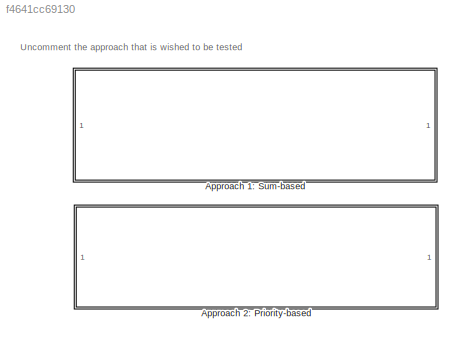
MODEL slx_f4641cc69130
KIND model
CONFIG AbsTol = auto
CONFIG EnableMultiTasking = off
CONFIG FixedStep = auto
CONFIG MaxStep = auto
CONFIG MinStep = auto
CONFIG RelTol = 1e-3
CONFIG SampleTimeConstraint = Unconstrained
CONFIG SolverName = VariableStepAuto
CONFIG StartTime = 0.0
CONFIG StopTime = 30
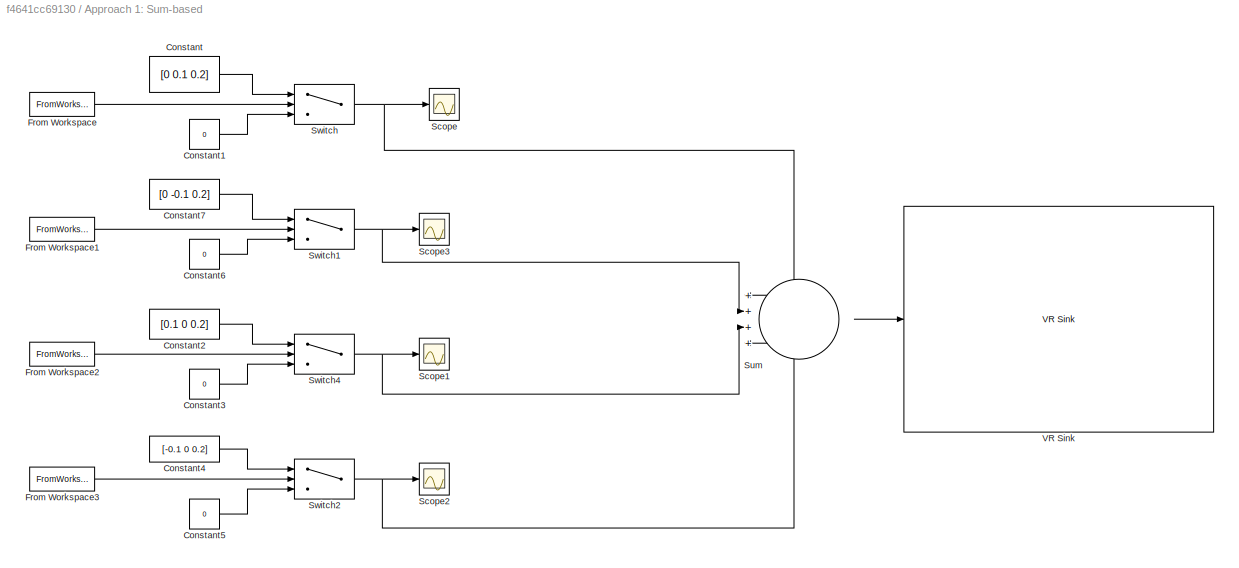
BLOCK [SubSystem] Approach 1: Sum-based
BLOCK [Constant] Approach 1: Sum-based/Constant
  Value = [0 0.1 0.2]
BLOCK [Constant] Approach 1: Sum-based/Constant1
  Value = 0
BLOCK [Constant] Approach 1: Sum-based/Constant2
  Value = [0.1 0 0.2]
BLOCK [Constant] Approach 1: Sum-based/Constant3
  Value = 0
BLOCK [Constant] Approach 1: Sum-based/Constant4
  Value = [-0.1 0 0.2]
BLOCK [Constant] Approach 1: Sum-based/Constant5
  Value = 0
BLOCK [Constant] Approach 1: Sum-based/Constant6
  Value = 0
BLOCK [Constant] Approach 1: Sum-based/Constant7
  Value = [0 -0.1 0.2]
BLOCK [FromWorkspace] Approach 1: Sum-based/From Workspace
  SampleTime = 0.05
  VariableName = musclebr
BLOCK [FromWorkspace] Approach 1: Sum-based/From Workspace1
  SampleTime = 0.05
  VariableName = musclebl
BLOCK [FromWorkspace] Approach 1: Sum-based/From Workspace2
  SampleTime = 0.05
  VariableName = muscletr
BLOCK [FromWorkspace] Approach 1: Sum-based/From Workspace3
  SampleTime = 0.05
  VariableName = muscletl
BLOCK [Scope] Approach 1: Sum-based/Scope
  Floating = off
  NumInputPorts = 1
  ScopeSpecificationString = Simulink.scopes.TimeScopeBlockCfg('CurrentConfiguration', extmgr.ConfigurationSet(extmgr.Configuration('Core','General UI',true),extmgr.Configuration('Core','Source UI',true),extmgr.Configuration('Sources','WiredSimulink',true,'DataLoggingVariableName','ScopeData1'),extmgr.Configuration('Visuals','Time Domain',true,'SerializedDisplays',{struct('MinYLimReal','-0.025','MaxYLimReal','0.225','YLabelRe...<+1569ch>
BLOCK [Scope] Approach 1: Sum-based/Scope1
  Floating = off
  NumInputPorts = 1
  ScopeSpecificationString = Simulink.scopes.TimeScopeBlockCfg('CurrentConfiguration', extmgr.ConfigurationSet(extmgr.Configuration('Core','General UI',true),extmgr.Configuration('Core','Source UI',true),extmgr.Configuration('Sources','WiredSimulink',true,'DataLoggingVariableName','ScopeData2'),extmgr.Configuration('Visuals','Time Domain',true,'SerializedDisplays',{struct('MinYLimReal','-0.025','MaxYLimReal','0.225','YLabelRe...<+1571ch>
BLOCK [Scope] Approach 1: Sum-based/Scope2
  Floating = off
  NumInputPorts = 1
  ScopeSpecificationString = Simulink.scopes.TimeScopeBlockCfg('CurrentConfiguration', extmgr.ConfigurationSet(extmgr.Configuration('Core','General UI',true),extmgr.Configuration('Core','Source UI',true),extmgr.Configuration('Sources','WiredSimulink',true,'DataLoggingVariableName','ScopeData3'),extmgr.Configuration('Visuals','Time Domain',true,'SerializedDisplays',{struct('MinYLimReal','-0.1375','MaxYLimReal','0.2375','YLabel...<+1580ch>
BLOCK [Scope] Approach 1: Sum-based/Scope3
  Floating = off
  NumInputPorts = 1
  ScopeSpecificationString = Simulink.scopes.TimeScopeBlockCfg('CurrentConfiguration', extmgr.ConfigurationSet(extmgr.Configuration('Core','General UI',true),extmgr.Configuration('Core','Source UI',true),extmgr.Configuration('Sources','WiredSimulink',true),extmgr.Configuration('Visuals','Time Domain',true,'SerializedDisplays',{struct('MinYLimReal','-0.1375','MaxYLimReal','0.2375','YLabelReal','','MinYLimMag','0.00000','MaxYLi...<+1539ch>
BLOCK [Sum] Approach 1: Sum-based/Sum
  Inputs = ++++
BLOCK [Switch] Approach 1: Sum-based/Switch
  Criteria = u2 > Threshold
  InputSameDT = off
  SaturateOnIntegerOverflow = off
  Threshold = 0.5
BLOCK [Switch] Approach 1: Sum-based/Switch1
  Criteria = u2 > Threshold
  InputSameDT = off
  SaturateOnIntegerOverflow = off
  Threshold = 0.25
BLOCK [Switch] Approach 1: Sum-based/Switch2
  Criteria = u2 > Threshold
  InputSameDT = off
  SaturateOnIntegerOverflow = off
  Threshold = 0.5
BLOCK [Switch] Approach 1: Sum-based/Switch4
  Criteria = u2 > Threshold
  InputSameDT = off
  SaturateOnIntegerOverflow = off
  Threshold = 0.5
BLOCK [Reference] Approach 1: Sum-based/VR Sink  REF=vrlib/VR Sink
  InstantiateOnLoad = on
  SourceBlock = vrlib/VR Sink
  SourceType = Virtual Reality Sink
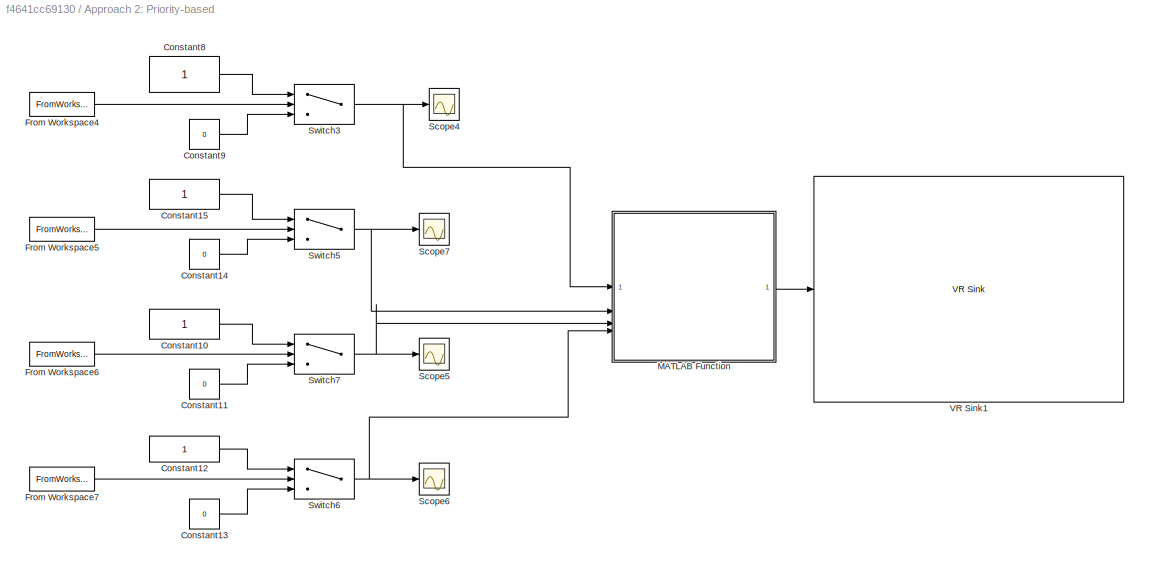
BLOCK [SubSystem] Approach 2: Priority-based
  Commented = on
BLOCK [Constant] Approach 2: Priority-based/Constant10
BLOCK [Constant] Approach 2: Priority-based/Constant11
  Value = 0
BLOCK [Constant] Approach 2: Priority-based/Constant12
BLOCK [Constant] Approach 2: Priority-based/Constant13
  Value = 0
BLOCK [Constant] Approach 2: Priority-based/Constant14
  Value = 0
BLOCK [Constant] Approach 2: Priority-based/Constant15
BLOCK [Constant] Approach 2: Priority-based/Constant8
BLOCK [Constant] Approach 2: Priority-based/Constant9
  Value = 0
BLOCK [FromWorkspace] Approach 2: Priority-based/From Workspace4
  SampleTime = 0.05
  VariableName = musclebr
BLOCK [FromWorkspace] Approach 2: Priority-based/From Workspace5
  SampleTime = 0.05
  VariableName = musclebl
BLOCK [FromWorkspace] Approach 2: Priority-based/From Workspace6
  SampleTime = 0.05
  VariableName = muscletr
BLOCK [FromWorkspace] Approach 2: Priority-based/From Workspace7
  SampleTime = 0.05
  VariableName = muscletl
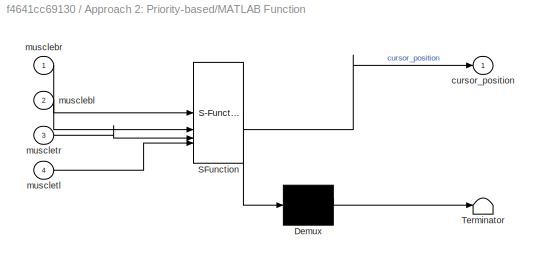
BLOCK [SubSystem] Approach 2: Priority-based/MATLAB Function
  ErrorFcn = Stateflow.Translate.translate
  PermitHierarchicalResolution = ExplicitOnly
  SFBlockType = MATLAB Function
  TreatAsAtomicUnit = on
BLOCK [Demux] Approach 2: Priority-based/MATLAB Function/ Demux 
  Outputs = 1
BLOCK [S-Function] Approach 2: Priority-based/MATLAB Function/ SFunction 
  EnableBusSupport = on
  FunctionName = sf_sfun
  PortCounts = [4 2]
  SFcnIsStateOwnerBlock = off
  SFunctionDeploymentMode = off
  Tag = Stateflow S-Function 2
BLOCK [Terminator] Approach 2: Priority-based/MATLAB Function/ Terminator 
BLOCK [Outport] Approach 2: Priority-based/MATLAB Function/cursor_position
BLOCK [Inport] Approach 2: Priority-based/MATLAB Function/musclebl
  Port = 2
BLOCK [Inport] Approach 2: Priority-based/MATLAB Function/musclebr
BLOCK [Inport] Approach 2: Priority-based/MATLAB Function/muscletl
  Port = 4
BLOCK [Inport] Approach 2: Priority-based/MATLAB Function/muscletr
  Port = 3
BLOCK [Scope] Approach 2: Priority-based/Scope4
  Floating = off
  NumInputPorts = 1
  ScopeSpecificationString = Simulink.scopes.TimeScopeBlockCfg('CurrentConfiguration', extmgr.ConfigurationSet(extmgr.Configuration('Core','General UI',true),extmgr.Configuration('Core','Source UI',true),extmgr.Configuration('Sources','WiredSimulink',true,'DataLoggingVariableName','ScopeData1'),extmgr.Configuration('Visuals','Time Domain',true,'SerializedDisplays',{struct('MinYLimReal','-0.025','MaxYLimReal','0.225','YLabelRe...<+1569ch>
BLOCK [Scope] Approach 2: Priority-based/Scope5
  Floating = off
  NumInputPorts = 1
  ScopeSpecificationString = Simulink.scopes.TimeScopeBlockCfg('CurrentConfiguration', extmgr.ConfigurationSet(extmgr.Configuration('Core','General UI',true),extmgr.Configuration('Core','Source UI',true),extmgr.Configuration('Sources','WiredSimulink',true,'DataLoggingVariableName','ScopeData2'),extmgr.Configuration('Visuals','Time Domain',true,'SerializedDisplays',{struct('MinYLimReal','-0.025','MaxYLimReal','0.225','YLabelRe...<+1571ch>
BLOCK [Scope] Approach 2: Priority-based/Scope6
  Floating = off
  NumInputPorts = 1
  ScopeSpecificationString = Simulink.scopes.TimeScopeBlockCfg('CurrentConfiguration', extmgr.ConfigurationSet(extmgr.Configuration('Core','General UI',true),extmgr.Configuration('Core','Source UI',true),extmgr.Configuration('Sources','WiredSimulink',true,'DataLoggingVariableName','ScopeData3'),extmgr.Configuration('Visuals','Time Domain',true,'SerializedDisplays',{struct('MinYLimReal','-0.125','MaxYLimReal','1.125','YLabelRe...<+1546ch>
BLOCK [Scope] Approach 2: Priority-based/Scope7
  Floating = off
  NumInputPorts = 1
  ScopeSpecificationString = Simulink.scopes.TimeScopeBlockCfg('CurrentConfiguration', extmgr.ConfigurationSet(extmgr.Configuration('Core','General UI',true),extmgr.Configuration('Core','Source UI',true),extmgr.Configuration('Sources','WiredSimulink',true,'DataLoggingVariableName','ScopeData4'),extmgr.Configuration('Visuals','Time Domain',true,'SerializedDisplays',{struct('MinYLimReal','-1.00000','MaxYLimReal','1.00000','YLab...<+1560ch>
BLOCK [Switch] Approach 2: Priority-based/Switch3
  Criteria = u2 > Threshold
  InputSameDT = off
  SaturateOnIntegerOverflow = off
  Threshold = 0.5
BLOCK [Switch] Approach 2: Priority-based/Switch5
  Criteria = u2 > Threshold
  InputSameDT = off
  SaturateOnIntegerOverflow = off
  Threshold = 0.25
BLOCK [Switch] Approach 2: Priority-based/Switch6
  Criteria = u2 > Threshold
  InputSameDT = off
  SaturateOnIntegerOverflow = off
  Threshold = 0.5
BLOCK [Switch] Approach 2: Priority-based/Switch7
  Criteria = u2 > Threshold
  InputSameDT = off
  SaturateOnIntegerOverflow = off
  Threshold = 0.5
BLOCK [Reference] Approach 2: Priority-based/VR Sink1  REF=vrlib/VR Sink
  InstantiateOnLoad = on
  SourceBlock = vrlib/VR Sink
  SourceType = Virtual Reality Sink
ANNOTATION (root): Uncomment the approach that is wished to be tested
LINE Approach 1: Sum-based/Constant1:1 -> Approach 1: Sum-based/Switch:3
LINE Approach 1: Sum-based/Constant2:1 -> Approach 1: Sum-based/Switch4:1
LINE Approach 1: Sum-based/Constant3:1 -> Approach 1: Sum-based/Switch4:3
LINE Approach 1: Sum-based/Constant4:1 -> Approach 1: Sum-based/Switch2:1
LINE Approach 1: Sum-based/Constant5:1 -> Approach 1: Sum-based/Switch2:3
LINE Approach 1: Sum-based/Constant6:1 -> Approach 1: Sum-based/Switch1:3
LINE Approach 1: Sum-based/Constant7:1 -> Approach 1: Sum-based/Switch1:1
LINE Approach 1: Sum-based/Constant:1 -> Approach 1: Sum-based/Switch:1
LINE Approach 1: Sum-based/From Workspace1:1 -> Approach 1: Sum-based/Switch1:2
LINE Approach 1: Sum-based/From Workspace2:1 -> Approach 1: Sum-based/Switch4:2
LINE Approach 1: Sum-based/From Workspace3:1 -> Approach 1: Sum-based/Switch2:2
LINE Approach 1: Sum-based/From Workspace:1 -> Approach 1: Sum-based/Switch:2
LINE Approach 1: Sum-based/Sum:1 -> Approach 1: Sum-based/VR Sink:1
NET Approach 1: Sum-based/Switch1:1 -> Approach 1: Sum-based/Scope3:1, Approach 1: Sum-based/Sum:2
NET Approach 1: Sum-based/Switch2:1 -> Approach 1: Sum-based/Scope2:1, Approach 1: Sum-based/Sum:4
NET Approach 1: Sum-based/Switch4:1 -> Approach 1: Sum-based/Scope1:1, Approach 1: Sum-based/Sum:3
NET Approach 1: Sum-based/Switch:1 -> Approach 1: Sum-based/Scope:1, Approach 1: Sum-based/Sum:1
LINE Approach 2: Priority-based/Constant10:1 -> Approach 2: Priority-based/Switch7:1
LINE Approach 2: Priority-based/Constant11:1 -> Approach 2: Priority-based/Switch7:3
LINE Approach 2: Priority-based/Constant12:1 -> Approach 2: Priority-based/Switch6:1
LINE Approach 2: Priority-based/Constant13:1 -> Approach 2: Priority-based/Switch6:3
LINE Approach 2: Priority-based/Constant14:1 -> Approach 2: Priority-based/Switch5:3
LINE Approach 2: Priority-based/Constant15:1 -> Approach 2: Priority-based/Switch5:1
LINE Approach 2: Priority-based/Constant8:1 -> Approach 2: Priority-based/Switch3:1
LINE Approach 2: Priority-based/Constant9:1 -> Approach 2: Priority-based/Switch3:3
LINE Approach 2: Priority-based/From Workspace4:1 -> Approach 2: Priority-based/Switch3:2
LINE Approach 2: Priority-based/From Workspace5:1 -> Approach 2: Priority-based/Switch5:2
LINE Approach 2: Priority-based/From Workspace6:1 -> Approach 2: Priority-based/Switch7:2
LINE Approach 2: Priority-based/From Workspace7:1 -> Approach 2: Priority-based/Switch6:2
LINE Approach 2: Priority-based/MATLAB Function:1 -> Approach 2: Priority-based/VR Sink1:1
NET Approach 2: Priority-based/Switch3:1 -> Approach 2: Priority-based/MATLAB Function:1, Approach 2: Priority-based/Scope4:1
NET Approach 2: Priority-based/Switch5:1 -> Approach 2: Priority-based/MATLAB Function:2, Approach 2: Priority-based/Scope7:1
NET Approach 2: Priority-based/Switch6:1 -> Approach 2: Priority-based/MATLAB Function:4, Approach 2: Priority-based/Scope6:1
NET Approach 2: Priority-based/Switch7:1 -> Approach 2: Priority-based/MATLAB Function:3, Approach 2: Priority-based/Scope5:1
note: NET lines group one-source signal fan-out (src -> all destinations, sorted); 1:1 wires keep LINE
CHART Approach 2: Priority-based/MATLAB Function states=1 transitions=1
  STATE_LABEL 'eML_blk_kernel()'
  STATE_LABEL 'SCRIPT:\nfunction cursor_position = control_cursor(musclebr, musclebl, muscletr, muscletl)\n    % Define the position vectors for the cardinal directions\n    up = [0, 0.1, 0.2];     % Muscle 1 (up)\n    down = [0, -0.1, 0.2];  % Muscle 2 (down)\n    right = [0.1, 0, 0.2];  % Muscle 3 (right)\n    left = [-0.1, 0, 0.2];  % Muscle 4 (left)\n\n    % Priority system: prioritize muscles in a specific order\n  ...<+370ch>'
CHART  states=0 transitions=0
